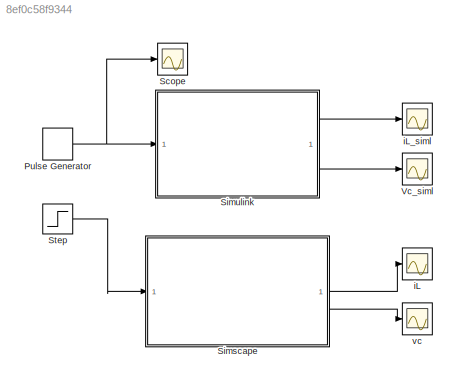
MODEL slx_8ef0c58f9344
KIND model
CONFIG AbsTol = auto
CONFIG EnableMultiTasking = off
CONFIG FixedStep = auto
CONFIG MaxStep = auto
CONFIG MinStep = auto
CONFIG RelTol = 1e-3
CONFIG SampleTimeConstraint = Unconstrained
CONFIG SolverName = VariableStepAuto
CONFIG StartTime = 0.0
CONFIG StopTime = 0.002
BLOCK [DiscretePulseGenerator] Pulse Generator
  Period = 1/100000
  PulseType = Time based
  PulseWidth = 40
BLOCK [Scope] Scope
  Floating = off
  NumInputPorts = 1
  ScopeSpecificationString = Simulink.scopes.TimeScopeBlockCfg('CurrentConfiguration', extmgr.ConfigurationSet(extmgr.Configuration('Core','General UI',true),extmgr.Configuration('Core','Source UI',true),extmgr.Configuration('Sources','WiredSimulink',true,'DataLoggingVariableName','ScopeData4'),extmgr.Configuration('Visuals','Time Domain',true,'SerializedDisplays',{struct('MinYLimReal','-0.05239','MaxYLimReal','1.0467','YLabe...<+1447ch>
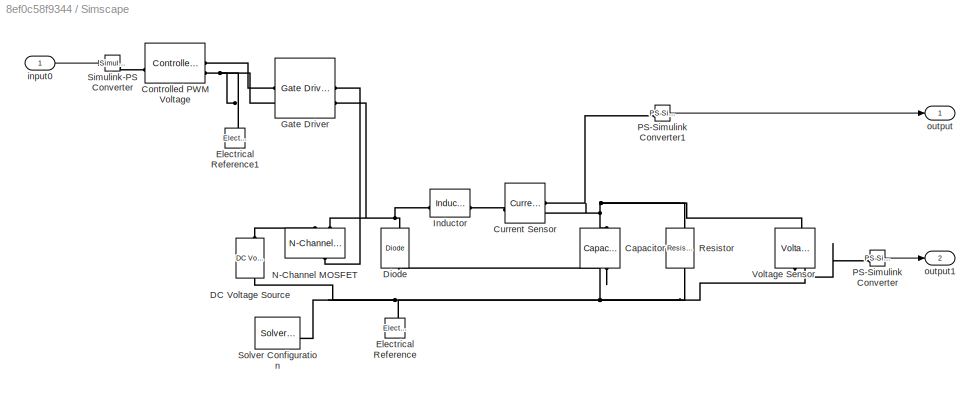
BLOCK [SubSystem] Simscape
BLOCK [Reference] Simscape/Capacitor  REF=fl_lib/Electrical/Electrical Elements/Capacitor
  NameLocation = left
  SourceBlock = fl_lib/Electrical/Electrical Elements/Capacitor
  SourceType = Capacitor
BLOCK [Reference] Simscape/Controlled PWM Voltage  REF=ee_lib/Integrated Circuits/Controlled PWM
Voltage
  SourceBlock = ee_lib/Integrated Circuits/Controlled PWM\nVoltage
  SourceType = Controlled PWM\nVoltage
BLOCK [Reference] Simscape/Current Sensor  REF=fl_lib/Electrical/Electrical Sensors/Current Sensor
  SourceBlock = fl_lib/Electrical/Electrical Sensors/Current Sensor
  SourceType = Current Sensor
BLOCK [Reference] Simscape/DC Voltage Source  REF=fl_lib/Electrical/Electrical Sources/DC Voltage Source
  NameLocation = right
  SourceBlock = fl_lib/Electrical/Electrical Sources/DC Voltage Source
  SourceType = DC Voltage Source
BLOCK [Reference] Simscape/Diode  REF=fl_lib/Electrical/Electrical Elements/Diode
  NameLocation = right
  SourceBlock = fl_lib/Electrical/Electrical Elements/Diode
  SourceType = Diode
BLOCK [Reference] Simscape/Electrical Reference  REF=fl_lib/Electrical/Electrical Elements/Electrical Reference
  NameLocation = right
  SourceBlock = fl_lib/Electrical/Electrical Elements/Electrical Reference
  SourceType = Electrical Reference
BLOCK [Reference] Simscape/Electrical Reference1  REF=fl_lib/Electrical/Electrical Elements/Electrical Reference
  NameLocation = right
  SourceBlock = fl_lib/Electrical/Electrical Elements/Electrical Reference
  SourceType = Electrical Reference
BLOCK [Reference] Simscape/Gate Driver  REF=ee_lib/Semiconductors &
Converters/Gate Driver
  SourceBlock = ee_lib/Semiconductors &\nConverters/Gate Driver
  SourceType = Gate Driver
BLOCK [Reference] Simscape/Inductor  REF=fl_lib/Electrical/Electrical Elements/Inductor
  SourceBlock = fl_lib/Electrical/Electrical Elements/Inductor
  SourceType = Inductor
BLOCK [Reference] Simscape/N-Channel MOSFET  REF=ee_lib/Semiconductors &
Converters/N-Channel MOSFET
  NameLocation = right
  SourceBlock = ee_lib/Semiconductors &\nConverters/N-Channel MOSFET
  SourceType = N-Channel MOSFET
BLOCK [Reference] Simscape/PS-Simulink Converter  REF=nesl_utility/PS-Simulink
Converter
  SourceBlock = nesl_utility/PS-Simulink\nConverter
  SourceType = PS-Simulink\nConverter
BLOCK [Reference] Simscape/PS-Simulink Converter1  REF=nesl_utility/PS-Simulink
Converter
  SourceBlock = nesl_utility/PS-Simulink\nConverter
  SourceType = PS-Simulink\nConverter
BLOCK [Reference] Simscape/Resistor  REF=fl_lib/Electrical/Electrical Elements/Resistor
  NameLocation = left
  SourceBlock = fl_lib/Electrical/Electrical Elements/Resistor
  SourceType = Resistor
BLOCK [Reference] Simscape/Simulink-PS Converter  REF=nesl_utility/Simulink-PS
Converter
  SourceBlock = nesl_utility/Simulink-PS\nConverter
  SourceType = Simulink-PS\nConverter
BLOCK [Reference] Simscape/Solver Configuration  REF=nesl_utility/Solver
Configuration
  SourceBlock = nesl_utility/Solver\nConfiguration
  SourceType = Solver\nConfiguration
BLOCK [Reference] Simscape/Voltage Sensor  REF=fl_lib/Electrical/Electrical Sensors/Voltage Sensor
  NameLocation = right
  SourceBlock = fl_lib/Electrical/Electrical Sensors/Voltage Sensor
  SourceType = Voltage Sensor
BLOCK [Inport] Simscape/input0
BLOCK [Outport] Simscape/output
BLOCK [Outport] Simscape/output1
  Port = 2
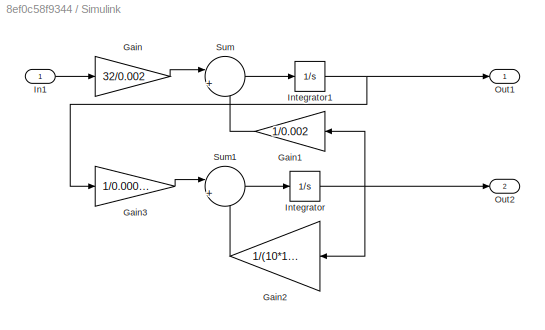
BLOCK [SubSystem] Simulink
BLOCK [Gain] Simulink/Gain
  Gain = 32/0.002
BLOCK [Gain] Simulink/Gain1
  Gain = 1/0.002
  NameLocation = top
BLOCK [Gain] Simulink/Gain2
  Gain = 1/(10*1e-5)
  NameLocation = top
BLOCK [Gain] Simulink/Gain3
  Gain = 1/0.00001
BLOCK [Inport] Simulink/In1
BLOCK [Integrator] Simulink/Integrator
BLOCK [Integrator] Simulink/Integrator1
BLOCK [Outport] Simulink/Out1
BLOCK [Outport] Simulink/Out2
  Port = 2
BLOCK [Sum] Simulink/Sum
  Inputs = |+-
BLOCK [Sum] Simulink/Sum1
  Inputs = |+-
BLOCK [Step] Step
  After = 0.4
  SampleTime = 0
  Time = 0
BLOCK [Scope] Vc_siml
  Floating = off
  NumInputPorts = 1
  ScopeSpecificationString = Simulink.scopes.TimeScopeBlockCfg('CurrentConfiguration', extmgr.ConfigurationSet(extmgr.Configuration('Core','General UI',true),extmgr.Configuration('Core','Source UI',true),extmgr.Configuration('Sources','WiredSimulink',true,'DataLoggingVariableName','ScopeData3'),extmgr.Configuration('Visuals','Time Domain',true,'SerializedDisplays',{struct('MinYLimReal','12.50478','MaxYLimReal','13.25289','YLa...<+1479ch>
BLOCK [Scope] iL
  Floating = off
  NumInputPorts = 1
  ScopeSpecificationString = Simulink.scopes.TimeScopeBlockCfg('CurrentConfiguration', extmgr.ConfigurationSet(extmgr.Configuration('Core','General UI',true),extmgr.Configuration('Core','Source UI',true),extmgr.Configuration('Sources','WiredSimulink',true),extmgr.Configuration('Visuals','Time Domain',true,'SerializedDisplays',{struct('MinYLimReal','1.04615','MaxYLimReal','1.34194','YLabelReal','','MinYLimMag','1.04615','MaxYL...<+1407ch>
BLOCK [Scope] iL_siml
  Floating = off
  NumInputPorts = 1
  ScopeSpecificationString = Simulink.scopes.TimeScopeBlockCfg('CurrentConfiguration', extmgr.ConfigurationSet(extmgr.Configuration('Core','General UI',true),extmgr.Configuration('Core','Source UI',true),extmgr.Configuration('Sources','WiredSimulink',true,'DataLoggingVariableName','ScopeData2'),extmgr.Configuration('Visuals','Time Domain',true,'SerializedDisplays',{struct('MinYLimReal','1.24618','MaxYLimReal','1.31502','YLabe...<+1423ch>
BLOCK [Scope] vc
  Floating = off
  NumInputPorts = 1
  ScopeSpecificationString = Simulink.scopes.TimeScopeBlockCfg('CurrentConfiguration', extmgr.ConfigurationSet(extmgr.Configuration('Core','General UI',true),extmgr.Configuration('Core','Source UI',true),extmgr.Configuration('Sources','WiredSimulink',true,'DataLoggingVariableName','ScopeData1'),extmgr.Configuration('Visuals','Time Domain',true,'SerializedDisplays',{struct('MinYLimReal','11.39172','MaxYLimReal','12.62201','YLa...<+1481ch>
NET Pulse Generator:1 -> Scope:1, Simulink:1
LINE Simscape/PS-Simulink Converter1:1 -> Simscape/output:1
LINE Simscape/PS-Simulink Converter:1 -> Simscape/output1:1
LINE Simscape/input0:1 -> Simscape/Simulink-PS Converter:1
LINE Simscape:1 -> iL:1
LINE Simscape:2 -> vc:1
LINE Simulink/Gain1:1 -> Simulink/Sum:2
LINE Simulink/Gain2:1 -> Simulink/Sum1:2
LINE Simulink/Gain3:1 -> Simulink/Sum1:1
LINE Simulink/Gain:1 -> Simulink/Sum:1
LINE Simulink/In1:1 -> Simulink/Gain:1
NET Simulink/Integrator1:1 -> Simulink/Gain3:1, Simulink/Out1:1
NET Simulink/Integrator:1 -> Simulink/Gain1:1, Simulink/Gain2:1, Simulink/Out2:1
LINE Simulink/Sum1:1 -> Simulink/Integrator:1
LINE Simulink/Sum:1 -> Simulink/Integrator1:1
LINE Simulink:1 -> iL_siml:1
LINE Simulink:2 -> Vc_siml:1
LINE Step:1 -> Simscape:1
PNET net1: Simscape/Capacitor:LConn1 -- Simscape/Current Sensor:RConn2 -- Simscape/Resistor:LConn1 -- Simscape/Voltage Sensor:LConn1
PNET net2: Simscape/Capacitor:RConn1 -- Simscape/DC Voltage Source:RConn1 -- Simscape/Diode:LConn1 -- Simscape/Electrical Reference:LConn1 -- Simscape/Resistor:RConn1 -- Simscape/Solver Configuration:RConn1 -- Simscape/Voltage Sensor:RConn2
PLINE Simscape/Controlled PWM Voltage:LConn1 -- Simscape/Simulink-PS Converter:RConn1
PLINE Simscape/Controlled PWM Voltage:RConn1 -- Simscape/Gate Driver:LConn1
PNET net3: Simscape/Controlled PWM Voltage:RConn2 -- Simscape/Electrical Reference1:LConn1 -- Simscape/Gate Driver:LConn2
PLINE Simscape/Current Sensor:LConn1 -- Simscape/Inductor:RConn1
PLINE Simscape/Current Sensor:RConn1 -- Simscape/PS-Simulink Converter1:LConn1
PLINE Simscape/DC Voltage Source:LConn1 -- Simscape/N-Channel MOSFET:RConn1
PNET net4: Simscape/Diode:RConn1 -- Simscape/Gate Driver:RConn2 -- Simscape/Inductor:LConn1 -- Simscape/N-Channel MOSFET:RConn2
PLINE Simscape/Gate Driver:RConn1 -- Simscape/N-Channel MOSFET:LConn1
PLINE Simscape/PS-Simulink Converter:LConn1 -- Simscape/Voltage Sensor:RConn1
note: NET lines group one-source signal fan-out (src -> all destinations, sorted); 1:1 wires keep LINE; PNET lines group multi-terminal physical nets as a canonical sorted terminal list (undirected conserving connections); 2-terminal nets keep the pairwise PLINE form
